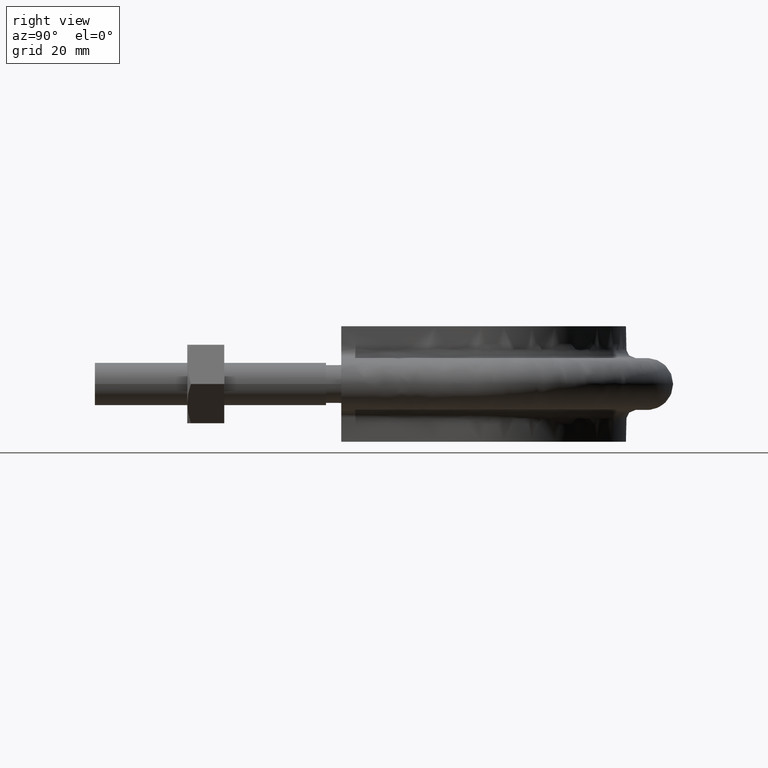
[diagram: clean part render]
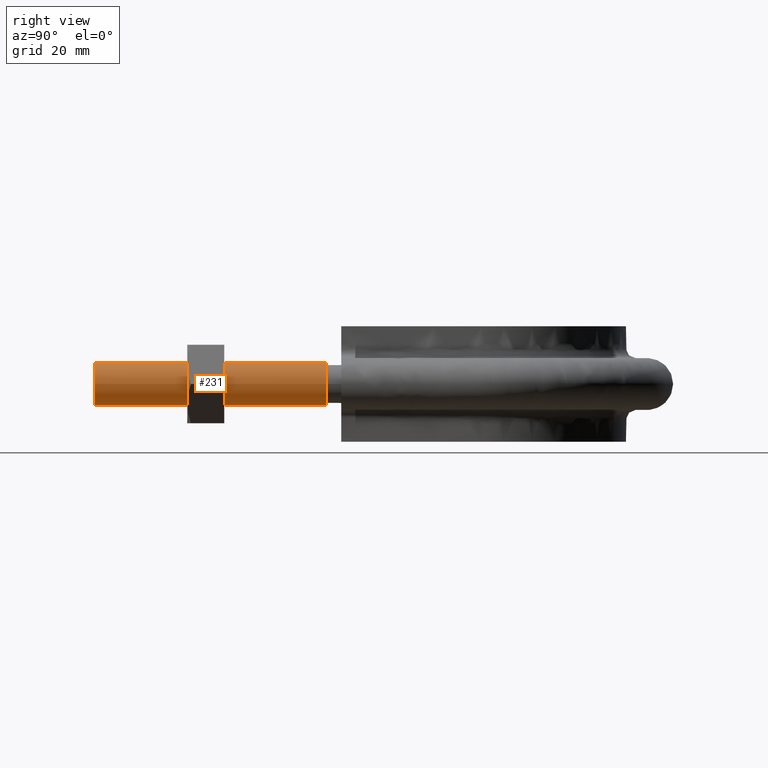
[diagram: same view with one face highlighted and labeled with its STEP entity id]
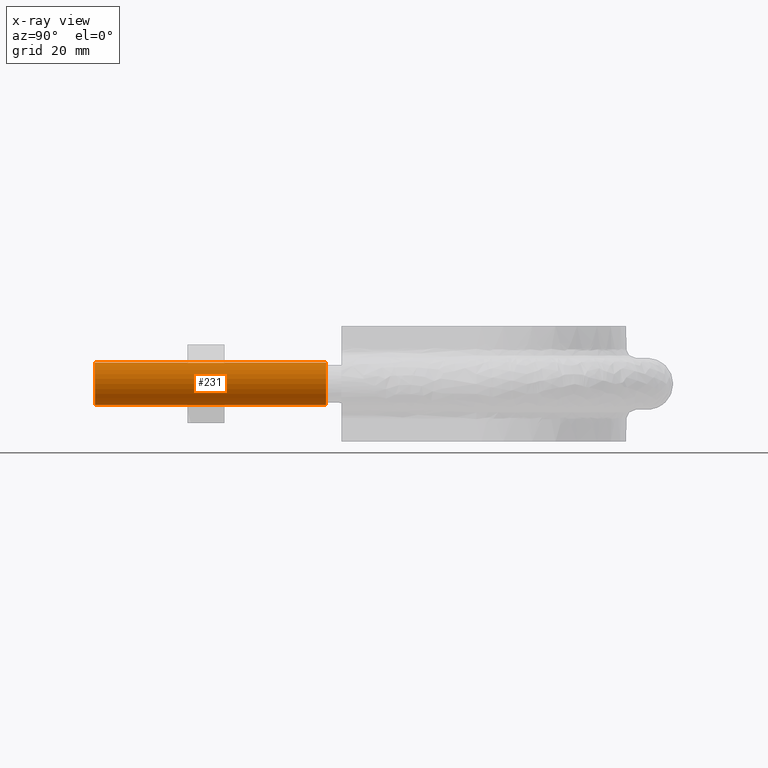
[diagram: x-ray of the same camera — body ghosted, the highlighted face saturated]
A machine part, right view. The second image highlights one B-rep face of the part: STEP entity #231.
The next image is the same camera in x-ray: the body ghosted, the highlighted face saturated — about 0% of this face is hidden behind the body in this view.
In plain terms, the highlighted cylindrical surface (bore or boss wall) has radius 4.6 mm, axis along (0, 1, -0).
Its self-contained STEP definition (entity closure, byte-faithful):
#231 = ADVANCED_FACE( '', ( #326, #327 ), #328, .T. );
#326 = FACE_OUTER_BOUND( '', #1323, .T. );
#327 = FACE_OUTER_BOUND( '', #1324, .T. );
#328 = CYLINDRICAL_SURFACE( '', #1325, 4.60000000000000 );
#1323 = EDGE_LOOP( '', ( #1569 ) );
#1324 = EDGE_LOOP( '', ( #1570 ) );
#1325 = AXIS2_PLACEMENT_3D( '', #1571, #1572, #1573 );
#1569 = ORIENTED_EDGE( '', *, *, #2047, .T. );
#1570 = ORIENTED_EDGE( '', *, *, #2048, .F. );
#1571 = CARTESIAN_POINT( '', ( 37.0000000000000, 50.0000000000000, -3.09825407517061E-015 ) );
#1572 = DIRECTION( '', ( 2.44921270764475E-016, 1.00000000000000, -6.12303176911189E-017 ) );
#1573 = DIRECTION( '', ( 1.00000000000000, -2.44921270764475E-016, 0.000000000000000 ) );
#2047 = EDGE_CURVE( '', #2225, #2225, #2226, .T. );
#2048 = EDGE_CURVE( '', #2227, #2227, #2228, .T. );
#2225 = VERTEX_POINT( '', #2722 );
#2226 = CIRCLE( '', #2723, 4.60000000000000 );
#2227 = VERTEX_POINT( '', #2724 );
#2228 = CIRCLE( '', #2725, 4.60000000000000 );
#2722 = CARTESIAN_POINT( '', ( 41.6000000000000, 50.0000000000000, -3.09825407517061E-015 ) );
#2723 = AXIS2_PLACEMENT_3D( '', #3128, #3129, #3130 );
#2724 = CARTESIAN_POINT( '', ( 41.6000000000000, -1.01887248638022E-014, -3.67381906146710E-017 ) );
#2725 = AXIS2_PLACEMENT_3D( '', #3131, #3132, #3133 );
#3128 = CARTESIAN_POINT( '', ( 37.0000000000000, 50.0000000000000, -3.09825407517061E-015 ) );
#3129 = DIRECTION( '', ( -2.44921270764476E-016, -1.00000000000000, 6.12303176911189E-017 ) );
#3130 = DIRECTION( '', ( 1.00000000000000, -2.44921270764476E-016, 1.02543741170147E-047 ) );
#3131 = CARTESIAN_POINT( '', ( 37.0000000000000, -9.06208701828559E-015, -3.67381906146710E-017 ) );
#3132 = DIRECTION( '', ( -2.44921270764476E-016, -1.00000000000000, 6.12303176911189E-017 ) );
#3133 = DIRECTION( '', ( 1.00000000000000, -2.44921270764476E-016, 1.02543741170147E-047 ) );